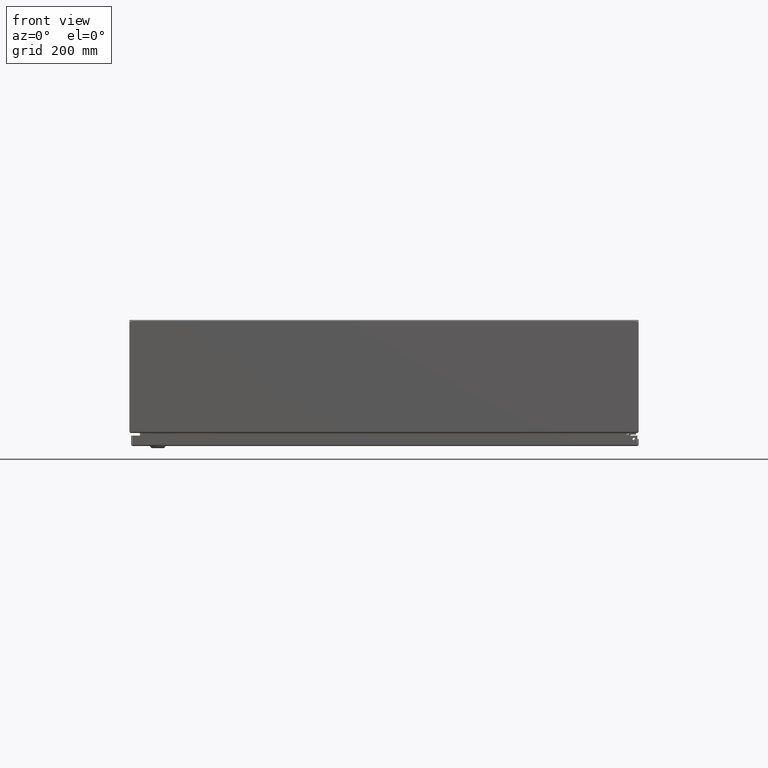
[diagram: clean part render]
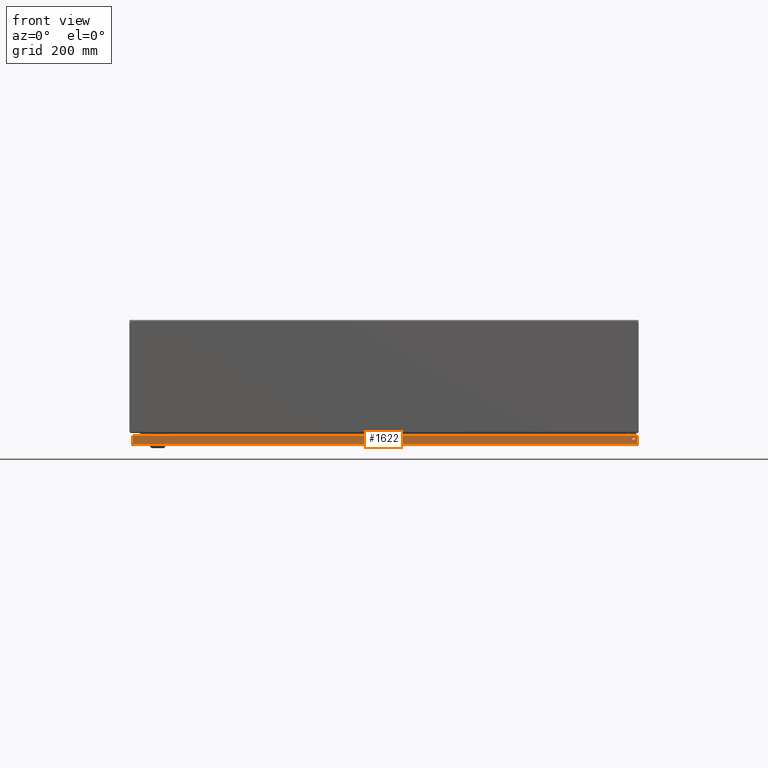
[diagram: same view with one face highlighted and labeled with its STEP entity id]
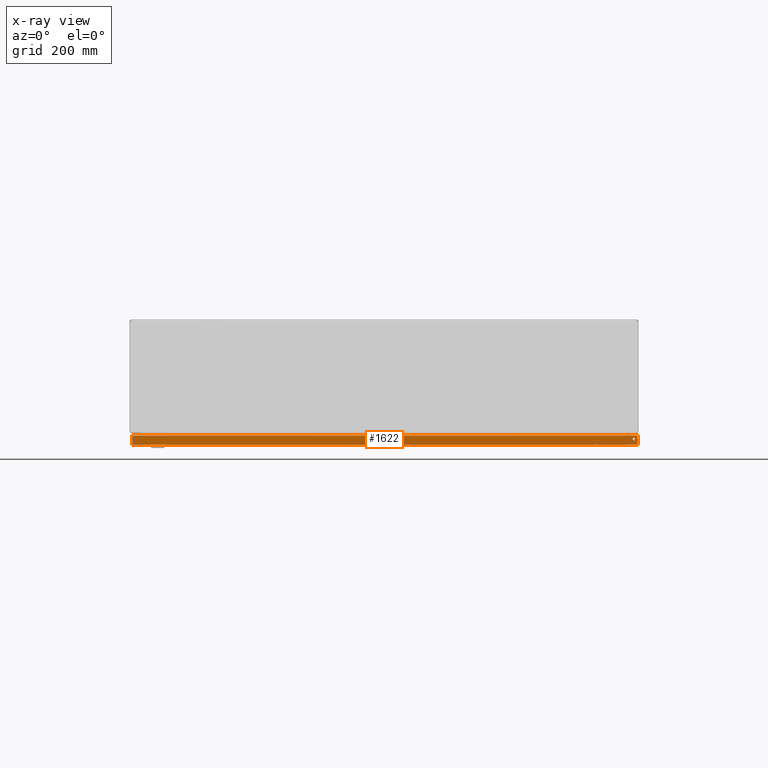
[diagram: x-ray of the same camera — body ghosted, the highlighted face saturated]
A machine part, front view. The second image highlights one B-rep face of the part: STEP entity #1622.
The next image is the same camera in x-ray: the body ghosted, the highlighted face saturated — about 0% of this face is hidden behind the body in this view.
In plain terms, the highlighted planar face has unit normal (0, 1, 0).
Its self-contained STEP definition (entity closure, byte-faithful):
#1190=CARTESIAN_POINT('',(35.633951456543976,3.922886E-017,0.479999999998119));
#1191=VERTEX_POINT('',#1190);
#1192=CARTESIAN_POINT('',(35.539951456543974,0.0,0.479999999998119));
#1193=DIRECTION('',(0.0,1.0,0.0));
#1194=DIRECTION('',(-1.0,0.0,0.0));
#1195=AXIS2_PLACEMENT_3D('',#1192,#1193,#1194);
#1196=CIRCLE('',#1195,0.094000000000000);
#1197=EDGE_CURVE('',#1191,#1191,#1196,.T.);
#1368=CARTESIAN_POINT('',(0.085048543456041,1.530000E-015,0.105249999999997));
#1369=VERTEX_POINT('',#1368);
#1370=CARTESIAN_POINT('',(35.789951456543967,1.540927E-015,0.105249999999999));
#1371=VERTEX_POINT('',#1370);
#1372=CARTESIAN_POINT('',(0.085048543456040,1.525072E-015,0.105250000000000));
#1373=DIRECTION('',(1.0,0.0,0.0));
#1374=VECTOR('',#1373,35.704902913087921);
#1375=LINE('',#1372,#1374);
#1376=EDGE_CURVE('',#1369,#1371,#1375,.T.);
#1457=CARTESIAN_POINT('',(35.789951456543967,1.491746E-015,0.729999999999999));
#1458=VERTEX_POINT('',#1457);
#1459=CARTESIAN_POINT('',(35.789951456543967,1.491746E-015,0.729999999999999));
#1460=DIRECTION('',(0.0,0.0,-1.0));
#1461=VECTOR('',#1460,0.624750000000000);
#1462=LINE('',#1459,#1461);
#1463=EDGE_CURVE('',#1458,#1371,#1462,.T.);
#1572=CARTESIAN_POINT('',(0.085048543456039,1.480819E-015,0.729999999999997));
#1573=VERTEX_POINT('',#1572);
#1574=CARTESIAN_POINT('',(0.085048543456039,1.519072E-015,0.105249999999997));
#1575=DIRECTION('',(0.0,0.0,1.0));
#1576=VECTOR('',#1575,0.624750000000000);
#1577=LINE('',#1574,#1576);
#1578=EDGE_CURVE('',#1369,#1573,#1577,.T.);
#1596=CARTESIAN_POINT('',(0.085048543456039,1.480819E-015,0.729999999999997));
#1597=DIRECTION('',(1.0,0.0,0.0));
#1598=VECTOR('',#1597,35.704902913087928);
#1599=LINE('',#1596,#1598);
#1600=EDGE_CURVE('',#1573,#1458,#1599,.T.);
#1608=CARTESIAN_POINT('',(17.937500000000000,1.514001E-015,0.366531193420748));
#1609=DIRECTION('',(0.0,1.0,0.0));
#1610=DIRECTION('',(1.0,0.0,0.0));
#1611=AXIS2_PLACEMENT_3D('',#1608,#1609,#1610);
#1612=PLANE('',#1611);
#1613=ORIENTED_EDGE('',*,*,#1376,.T.);
#1614=ORIENTED_EDGE('',*,*,#1463,.F.);
#1615=ORIENTED_EDGE('',*,*,#1600,.F.);
#1616=ORIENTED_EDGE('',*,*,#1578,.F.);
#1617=EDGE_LOOP('',(#1613,#1614,#1615,#1616));
#1618=FACE_OUTER_BOUND('',#1617,.T.);
#1619=ORIENTED_EDGE('',*,*,#1197,.T.);
#1620=EDGE_LOOP('',(#1619));
#1621=FACE_BOUND('',#1620,.T.);
#1622=ADVANCED_FACE('',(#1618,#1621),#1612,.F.);